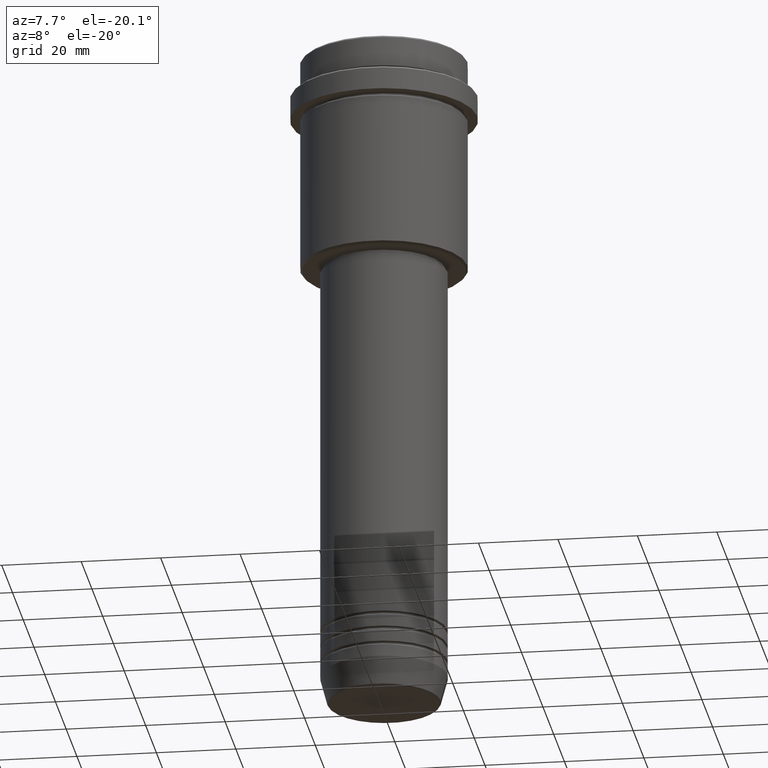
[diagram: clean part render]
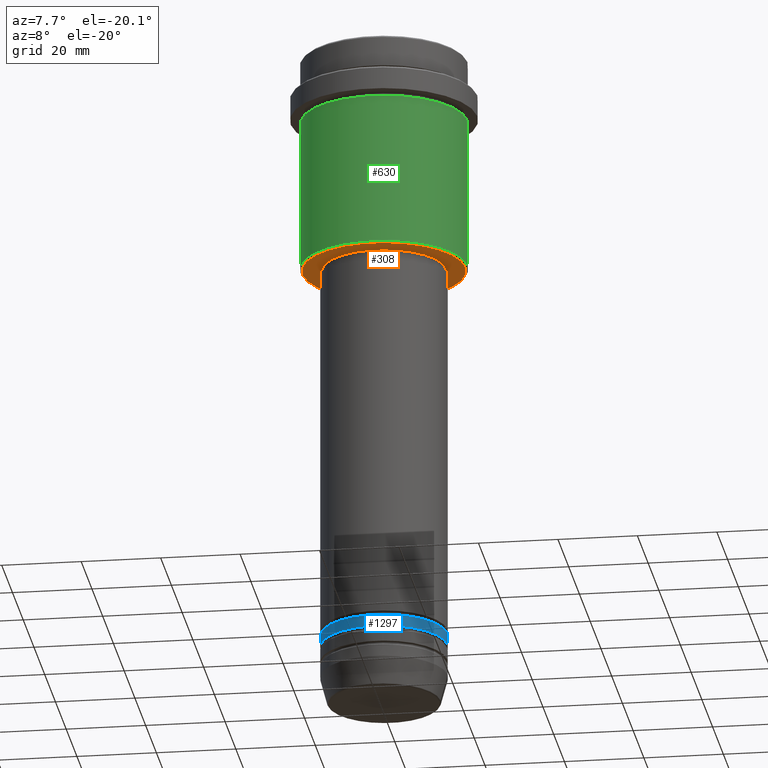
[diagram: same view with three faces highlighted in distinct colors, each labeled with its STEP entity id]
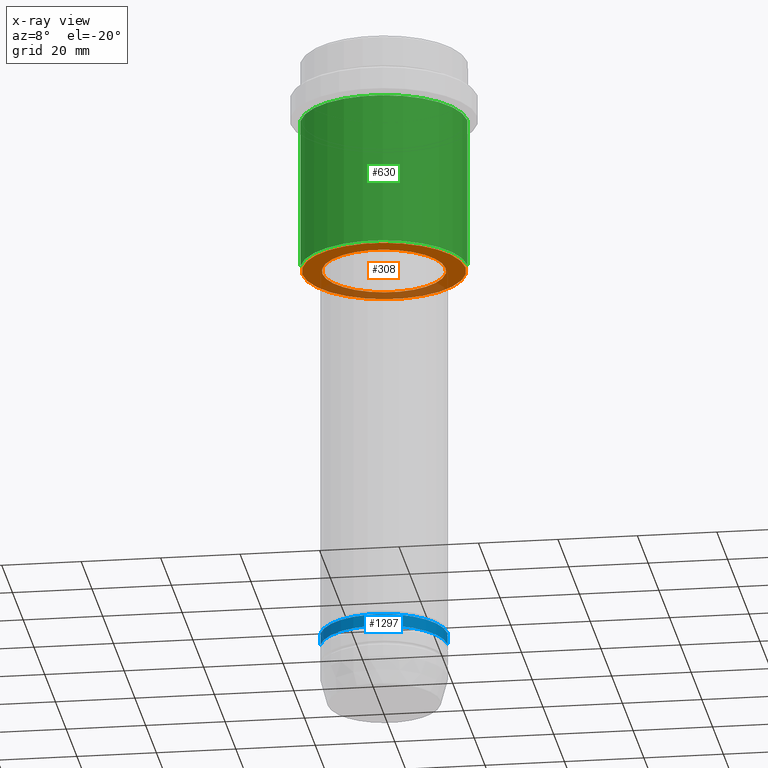
[diagram: x-ray of the same camera — body ghosted, the three highlighted faces saturated]
A machine part, auxiliary view with three faces highlighted in distinct colors.
The next image is the same camera in x-ray (body ghosted, the three faces saturated) — at least one of them is partly hidden behind the body in this view.
Their STEP definitions:

[orange] entity #308 — the highlighted planar face has unit normal (0, 0, -1).
#14 = AXIS2_PLACEMENT_3D ( 'NONE', #499, #1070, #73 ) ;
#22 = CARTESIAN_POINT ( 'NONE',  ( 0.000000000000000000, 0.000000000000000000, -54.99999999999998579 ) ) ;
#27 = VERTEX_POINT ( 'NONE', #1026 ) ;
#54 = EDGE_CURVE ( 'NONE', #533, #27, #222, .T. ) ;
#73 = DIRECTION ( 'NONE',  ( -1.000000000000000000, 0.000000000000000000, -0.000000000000000000 ) ) ;
#86 = ORIENTED_EDGE ( 'NONE', *, *, #784, .T. ) ;
#140 = AXIS2_PLACEMENT_3D ( 'NONE', #158, #1341, #681 ) ;
#158 = CARTESIAN_POINT ( 'NONE',  ( 0.000000000000000000, 0.000000000000000000, -54.99999999999998579 ) ) ;
#167 = AXIS2_PLACEMENT_3D ( 'NONE', #1336, #488, #914 ) ;
#222 = CIRCLE ( 'NONE', #1406, 15.50000000000000000 ) ;
#261 = CIRCLE ( 'NONE', #534, 15.50000000000000000 ) ;
#308 = ADVANCED_FACE ( 'NONE', ( #518, #1389 ), #1174, .T. ) ;
#384 = ORIENTED_EDGE ( 'NONE', *, *, #879, .T. ) ;
#430 = ORIENTED_EDGE ( 'NONE', *, *, #54, .T. ) ;
#450 = DIRECTION ( 'NONE',  ( 1.000000000000000000, 0.000000000000000000, 0.000000000000000000 ) ) ;
#488 = DIRECTION ( 'NONE',  ( 0.000000000000000000, 0.000000000000000000, -1.000000000000000000 ) ) ;
#499 = CARTESIAN_POINT ( 'NONE',  ( 0.000000000000000000, 21.00000000000000000, -54.99999999999998579 ) ) ;
#511 = CARTESIAN_POINT ( 'NONE',  ( -15.50000000000000000, 1.898202538678397557E-15, -54.99999999999998579 ) ) ;
#518 = FACE_OUTER_BOUND ( 'NONE', #719, .T. ) ;
#533 = VERTEX_POINT ( 'NONE', #511 ) ;
#534 = AXIS2_PLACEMENT_3D ( 'NONE', #22, #793, #1125 ) ;
#544 = VERTEX_POINT ( 'NONE', #925 ) ;
#615 = ORIENTED_EDGE ( 'NONE', *, *, #1260, .T. ) ;
#681 = DIRECTION ( 'NONE',  ( -1.000000000000000000, 0.000000000000000000, 0.000000000000000000 ) ) ;
#719 = EDGE_LOOP ( 'NONE', ( #615, #86 ) ) ;
#784 = EDGE_CURVE ( 'NONE', #544, #926, #948, .T. ) ;
#793 = DIRECTION ( 'NONE',  ( -0.000000000000000000, -0.000000000000000000, 1.000000000000000000 ) ) ;
#879 = EDGE_CURVE ( 'NONE', #27, #533, #261, .T. ) ;
#914 = DIRECTION ( 'NONE',  ( -1.000000000000000000, 0.000000000000000000, 0.000000000000000000 ) ) ;
#925 = CARTESIAN_POINT ( 'NONE',  ( -20.50000000000004619, 2.541142108230760635E-15, -54.99999999999998579 ) ) ;
#926 = VERTEX_POINT ( 'NONE', #1060 ) ;
#948 = CIRCLE ( 'NONE', #167, 20.50000000000004619 ) ;
#1000 = CARTESIAN_POINT ( 'NONE',  ( 0.000000000000000000, 0.000000000000000000, -54.99999999999998579 ) ) ;
#1026 = CARTESIAN_POINT ( 'NONE',  ( 15.50000000000000000, 0.000000000000000000, -54.99999999999998579 ) ) ;
#1060 = CARTESIAN_POINT ( 'NONE',  ( 20.50000000000004619, 0.000000000000000000, -54.99999999999998579 ) ) ;
#1070 = DIRECTION ( 'NONE',  ( 0.000000000000000000, 0.000000000000000000, -1.000000000000000000 ) ) ;
#1125 = DIRECTION ( 'NONE',  ( 1.000000000000000000, 0.000000000000000000, 0.000000000000000000 ) ) ;
#1174 = PLANE ( 'NONE',  #14 ) ;
#1221 = EDGE_LOOP ( 'NONE', ( #384, #430 ) ) ;
#1226 = DIRECTION ( 'NONE',  ( -0.000000000000000000, -0.000000000000000000, 1.000000000000000000 ) ) ;
#1260 = EDGE_CURVE ( 'NONE', #926, #544, #1325, .T. ) ;
#1325 = CIRCLE ( 'NONE', #140, 20.50000000000004619 ) ;
#1336 = CARTESIAN_POINT ( 'NONE',  ( 0.000000000000000000, 0.000000000000000000, -54.99999999999998579 ) ) ;
#1341 = DIRECTION ( 'NONE',  ( 0.000000000000000000, 0.000000000000000000, -1.000000000000000000 ) ) ;
#1389 = FACE_BOUND ( 'NONE', #1221, .T. ) ;
#1406 = AXIS2_PLACEMENT_3D ( 'NONE', #1000, #1226, #450 ) ;

[blue] entity #1297 — the highlighted cylindrical surface (partial cylindrical patch) has radius 16 mm, axis along (-0, -0, 1).
#63 = ORIENTED_EDGE ( 'NONE', *, *, #181, .F. ) ;
#109 = CARTESIAN_POINT ( 'NONE',  ( -16.00000000000000000, 1.959434878635765131E-15, 0.000000000000000000 ) ) ;
#137 = EDGE_CURVE ( 'NONE', #157, #1299, #463, .T. ) ;
#150 = CARTESIAN_POINT ( 'NONE',  ( 16.00000000000000000, 0.000000000000000000, -151.9999999999998579 ) ) ;
#157 = VERTEX_POINT ( 'NONE', #870 ) ;
#181 = EDGE_CURVE ( 'NONE', #353, #157, #240, .T. ) ;
#219 = ORIENTED_EDGE ( 'NONE', *, *, #1181, .T. ) ;
#231 = ORIENTED_EDGE ( 'NONE', *, *, #1346, .T. ) ;
#239 = CARTESIAN_POINT ( 'NONE',  ( 16.00000000000000000, 0.000000000000000000, 0.000000000000000000 ) ) ;
#240 = LINE ( 'NONE', #109, #401 ) ;
#247 = DIRECTION ( 'NONE',  ( 1.000000000000000000, 0.000000000000000000, 0.000000000000000000 ) ) ;
#253 = DIRECTION ( 'NONE',  ( -0.000000000000000000, -0.000000000000000000, 1.000000000000000000 ) ) ;
#293 = CARTESIAN_POINT ( 'NONE',  ( 16.00000000000000000, 0.000000000000000000, -154.9999999999998579 ) ) ;
#339 = EDGE_LOOP ( 'NONE', ( #63, #219, #231, #437 ) ) ;
#353 = VERTEX_POINT ( 'NONE', #838 ) ;
#401 = VECTOR ( 'NONE', #663, 1000.000000000000000 ) ;
#416 = DIRECTION ( 'NONE',  ( 1.000000000000000000, 0.000000000000000000, 0.000000000000000000 ) ) ;
#437 = ORIENTED_EDGE ( 'NONE', *, *, #137, .F. ) ;
#463 = CIRCLE ( 'NONE', #1266, 16.00000000000000000 ) ;
#492 = VERTEX_POINT ( 'NONE', #293 ) ;
#517 = AXIS2_PLACEMENT_3D ( 'NONE', #1025, #253, #247 ) ;
#559 = CARTESIAN_POINT ( 'NONE',  ( 0.000000000000000000, 0.000000000000000000, -154.9999999999998579 ) ) ;
#650 = CIRCLE ( 'NONE', #876, 16.00000000000000000 ) ;
#663 = DIRECTION ( 'NONE',  ( -0.000000000000000000, -0.000000000000000000, 1.000000000000000000 ) ) ;
#673 = DIRECTION ( 'NONE',  ( -0.000000000000000000, -0.000000000000000000, 1.000000000000000000 ) ) ;
#838 = CARTESIAN_POINT ( 'NONE',  ( -16.00000000000000000, 1.959434878635765131E-15, -154.9999999999998579 ) ) ;
#870 = CARTESIAN_POINT ( 'NONE',  ( -16.00000000000000000, 1.959434878635765131E-15, -151.9999999999998579 ) ) ;
#876 = AXIS2_PLACEMENT_3D ( 'NONE', #559, #1400, #416 ) ;
#930 = DIRECTION ( 'NONE',  ( 1.000000000000000000, 0.000000000000000000, 0.000000000000000000 ) ) ;
#956 = DIRECTION ( 'NONE',  ( -0.000000000000000000, -0.000000000000000000, 1.000000000000000000 ) ) ;
#1025 = CARTESIAN_POINT ( 'NONE',  ( 0.000000000000000000, 0.000000000000000000, 0.000000000000000000 ) ) ;
#1077 = CARTESIAN_POINT ( 'NONE',  ( 0.000000000000000000, 0.000000000000000000, -151.9999999999998579 ) ) ;
#1181 = EDGE_CURVE ( 'NONE', #353, #492, #650, .T. ) ;
#1214 = LINE ( 'NONE', #239, #1243 ) ;
#1231 = FACE_OUTER_BOUND ( 'NONE', #339, .T. ) ;
#1243 = VECTOR ( 'NONE', #673, 1000.000000000000000 ) ;
#1266 = AXIS2_PLACEMENT_3D ( 'NONE', #1077, #956, #930 ) ;
#1297 = ADVANCED_FACE ( 'NONE', ( #1231 ), #1324, .T. ) ;
#1299 = VERTEX_POINT ( 'NONE', #150 ) ;
#1324 = CYLINDRICAL_SURFACE ( 'NONE', #517, 16.00000000000000000 ) ;
#1346 = EDGE_CURVE ( 'NONE', #492, #1299, #1214, .T. ) ;
#1400 = DIRECTION ( 'NONE',  ( -0.000000000000000000, -0.000000000000000000, 1.000000000000000000 ) ) ;

[green] entity #630 — the highlighted cylindrical surface (partial cylindrical patch) has radius 21 mm, axis along (-0, -0, 1).
#44 = EDGE_CURVE ( 'NONE', #296, #943, #1326, .T. ) ;
#191 = EDGE_CURVE ( 'NONE', #296, #1393, #1384, .T. ) ;
#195 = VECTOR ( 'NONE', #626, 1000.000000000000000 ) ;
#197 = CARTESIAN_POINT ( 'NONE',  ( 0.000000000000000000, 0.000000000000000000, 0.000000000000000000 ) ) ;
#224 = FACE_OUTER_BOUND ( 'NONE', #327, .T. ) ;
#228 = EDGE_CURVE ( 'NONE', #943, #1366, #372, .T. ) ;
#254 = DIRECTION ( 'NONE',  ( 1.000000000000000000, 0.000000000000000000, 0.000000000000000000 ) ) ;
#281 = CARTESIAN_POINT ( 'NONE',  ( 20.99999999999999645, 0.000000000000000000, -54.50000000000004974 ) ) ;
#296 = VERTEX_POINT ( 'NONE', #829 ) ;
#303 = CARTESIAN_POINT ( 'NONE',  ( -20.99999999999999645, 2.571758278209441267E-15, -15.99999999999997691 ) ) ;
#305 = CARTESIAN_POINT ( 'NONE',  ( 20.99999999999999645, 0.000000000000000000, 0.000000000000000000 ) ) ;
#327 = EDGE_LOOP ( 'NONE', ( #1176, #1342, #447, #420 ) ) ;
#344 = CARTESIAN_POINT ( 'NONE',  ( -20.99999999999999645, 2.571758278209441267E-15, 0.000000000000000000 ) ) ;
#361 = CARTESIAN_POINT ( 'NONE',  ( 0.000000000000000000, 0.000000000000000000, -15.99999999999997691 ) ) ;
#372 = CIRCLE ( 'NONE', #1179, 20.99999999999999645 ) ;
#376 = CARTESIAN_POINT ( 'NONE',  ( 20.99999999999999645, 0.000000000000000000, -15.99999999999997691 ) ) ;
#420 = ORIENTED_EDGE ( 'NONE', *, *, #228, .F. ) ;
#447 = ORIENTED_EDGE ( 'NONE', *, *, #713, .T. ) ;
#607 = VECTOR ( 'NONE', #1233, 1000.000000000000000 ) ;
#626 = DIRECTION ( 'NONE',  ( -0.000000000000000000, -0.000000000000000000, 1.000000000000000000 ) ) ;
#630 = ADVANCED_FACE ( 'NONE', ( #224 ), #1392, .T. ) ;
#674 = CARTESIAN_POINT ( 'NONE',  ( 0.000000000000000000, 0.000000000000000000, -54.50000000000004974 ) ) ;
#680 = AXIS2_PLACEMENT_3D ( 'NONE', #197, #1072, #1001 ) ;
#713 = EDGE_CURVE ( 'NONE', #1393, #1366, #1306, .T. ) ;
#767 = AXIS2_PLACEMENT_3D ( 'NONE', #674, #1208, #1317 ) ;
#803 = DIRECTION ( 'NONE',  ( -0.000000000000000000, -0.000000000000000000, 1.000000000000000000 ) ) ;
#829 = CARTESIAN_POINT ( 'NONE',  ( -20.99999999999999645, 2.571758278209441267E-15, -54.50000000000004974 ) ) ;
#943 = VERTEX_POINT ( 'NONE', #303 ) ;
#1001 = DIRECTION ( 'NONE',  ( 1.000000000000000000, 0.000000000000000000, 0.000000000000000000 ) ) ;
#1072 = DIRECTION ( 'NONE',  ( -0.000000000000000000, -0.000000000000000000, 1.000000000000000000 ) ) ;
#1176 = ORIENTED_EDGE ( 'NONE', *, *, #44, .F. ) ;
#1179 = AXIS2_PLACEMENT_3D ( 'NONE', #361, #803, #254 ) ;
#1208 = DIRECTION ( 'NONE',  ( -0.000000000000000000, -0.000000000000000000, 1.000000000000000000 ) ) ;
#1233 = DIRECTION ( 'NONE',  ( -0.000000000000000000, -0.000000000000000000, 1.000000000000000000 ) ) ;
#1306 = LINE ( 'NONE', #305, #195 ) ;
#1317 = DIRECTION ( 'NONE',  ( -1.000000000000000000, 0.000000000000000000, 0.000000000000000000 ) ) ;
#1326 = LINE ( 'NONE', #344, #607 ) ;
#1342 = ORIENTED_EDGE ( 'NONE', *, *, #191, .T. ) ;
#1366 = VERTEX_POINT ( 'NONE', #376 ) ;
#1384 = CIRCLE ( 'NONE', #767, 20.99999999999999645 ) ;
#1392 = CYLINDRICAL_SURFACE ( 'NONE', #680, 20.99999999999999645 ) ;
#1393 = VERTEX_POINT ( 'NONE', #281 ) ;